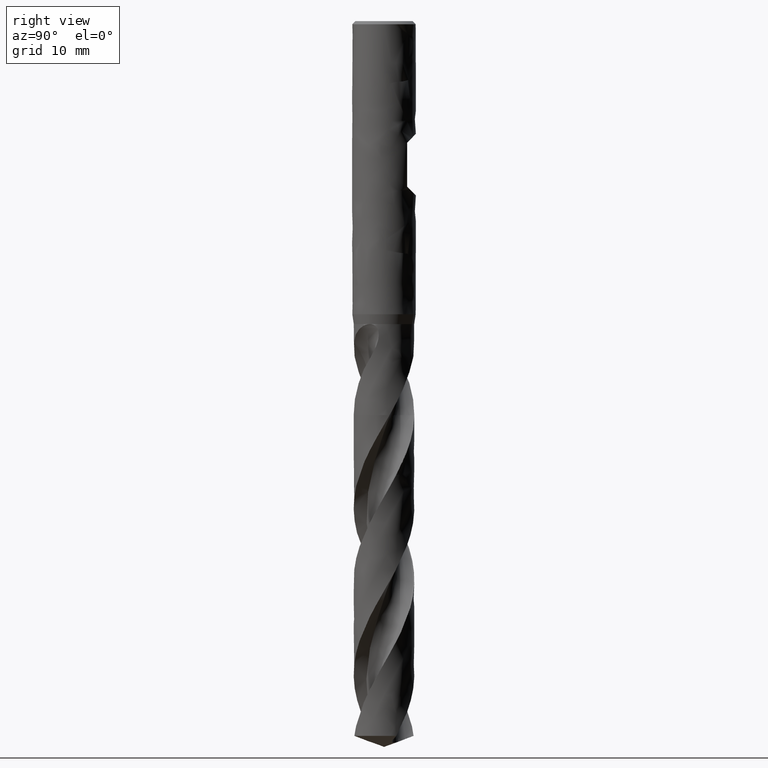
[diagram: clean part render]
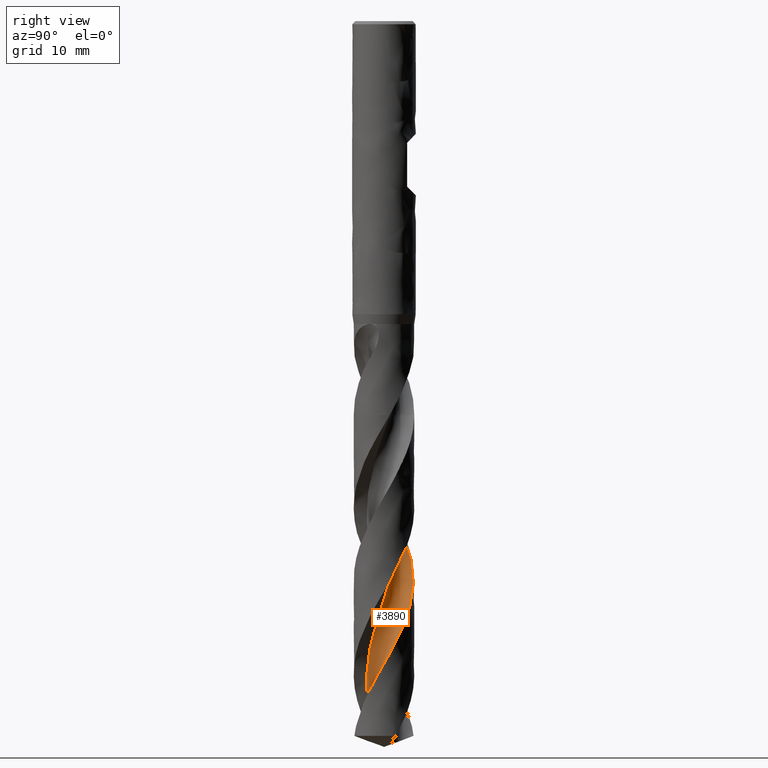
[diagram: same view with one face highlighted and labeled with its STEP entity id]
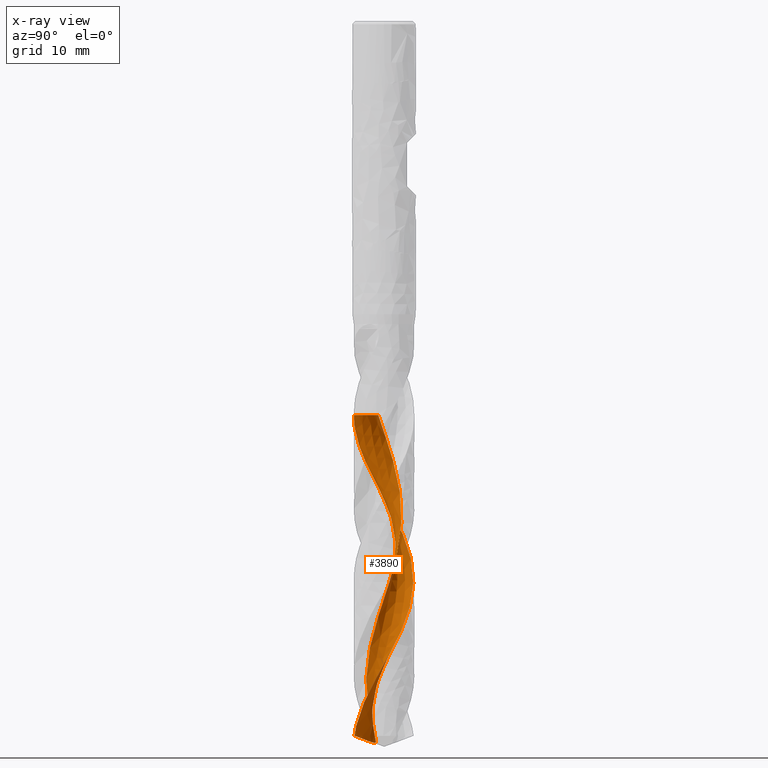
[diagram: x-ray of the same camera — body ghosted, the highlighted face saturated]
A machine part, right view. The second image highlights one B-rep face of the part: STEP entity #3890.
The next image is the same camera in x-ray: the body ghosted, the highlighted face saturated — about 0% of this face is hidden behind the body in this view.
In plain terms, the highlighted face is a freeform B-spline surface patch.
Its self-contained STEP definition (entity closure, byte-faithful):
#1922 = VERTEX_POINT('', #1923);
#1923 = CARTESIAN_POINT('', (-2.15756374204552, -0.721682214597213, -49.4));
#1929 = EDGE_CURVE('', #1922, #1930, #1932, .T.);
#1930 = VERTEX_POINT('', #1931);
#1931 = CARTESIAN_POINT('', (-0.0676140754657782, -3.79939841774969, -49.4));
#1932 = B_SPLINE_CURVE_WITH_KNOTS('', 3, (#1933, #1934, #1935, #1936, #1937, #1938, #1939, #1940, #1941, #1942, #1943, #1944, #1945, #1946, #1947, #1948, #1949, #1950, #1951, #1952, #1953, #1954, #1955, #1956, #1957, #1958, #1959, #1960, #1961, #1962, #1963, #1964, #1965, #1966, #1967, #1968, #1969, #1970, #1971, #1972, #1973, #1974, #1975, #1976, #1977, #1978, #1979, #1980, #1981, #1982, #1983, #1984, #1985, #1986, #1987, #1988, #1989, #1990, #1991, #1992, #1993, #1994, #1995, #1996, #1997, #1998, #1999, #2000, #2001, #2002, #2003, #2004, #2005), .UNSPECIFIED., .F., .U., (4, 3, 3, 3, 3, 3, 3, 3, 3, 3, 3, 3, 3, 3, 3, 3, 3, 3, 3, 3, 3, 3, 3, 3, 4), (0., 0.198102620045559, 0.396007886428974, 0.593720137415794, 0.791242859788339, 0.988578747577515, 1.18572974667057, 1.38269708688494, 1.57948130263157, 1.776082242892, 1.97249907087823, 2.16873025341172, 2.20763480684455, 2.40571772462006, 2.60360375688927, 2.80129715480241, 2.99880132450905, 3.19611888440971, 3.39325170846369, 3.59020095709346, 3.78696709676669, 3.98354990894398, 4.17994848872742, 4.31094176945902, 4.34968559215296), .UNSPECIFIED.);
#1933 = CARTESIAN_POINT('', (-2.15756374204551, -0.721682214597209, -49.4));
#1934 = CARTESIAN_POINT('', (-2.09154292649425, -0.723012013848227, -49.4));
#1935 = CARTESIAN_POINT('', (-2.02551778045493, -0.727216534727586, -49.4));
#1936 = CARTESIAN_POINT('', (-1.95986157918401, -0.734272006843179, -49.4));
#1937 = CARTESIAN_POINT('', (-1.89427078589083, -0.74132045016097, -49.4));
#1938 = CARTESIAN_POINT('', (-1.8289247798516, -0.751227419485921, -49.4));
#1939 = CARTESIAN_POINT('', (-1.76419226210935, -0.763937016835212, -49.4));
#1940 = CARTESIAN_POINT('', (-1.69952287746513, -0.776634218617585, -49.4));
#1941 = CARTESIAN_POINT('', (-1.63534433337415, -0.792152419475124, -49.4));
#1942 = CARTESIAN_POINT('', (-1.57201803872644, -0.810404231701749, -49.4));
#1943 = CARTESIAN_POINT('', (-1.50875244919343, -0.82863854758881, -49.4));
#1944 = CARTESIAN_POINT('', (-1.44621888813532, -0.849635404934512, -49.4));
#1945 = CARTESIAN_POINT('', (-1.38476882717498, -0.873276790316916, -49.4));
#1946 = CARTESIAN_POINT('', (-1.32337689115541, -0.896895813571384, -49.4));
#1947 = CARTESIAN_POINT('', (-1.26295154786131, -0.923198542533362, -49.4));
#1948 = CARTESIAN_POINT('', (-1.203831778333, -0.952037421128864, -49.4));
#1949 = CARTESIAN_POINT('', (-1.14476739952568, -0.98084927989173, -49.4));
#1950 = CARTESIAN_POINT('', (-1.08689585151214, -1.01224633073886, -49.4));
#1951 = CARTESIAN_POINT('', (-1.0305411815411, -1.04605276831694, -49.4));
#1952 = CARTESIAN_POINT('', (-0.974239009581947, -1.07982771301673, -49.4));
#1953 = CARTESIAN_POINT('', (-0.919345946236182, -1.11607050093009, -49.4));
#1954 = CARTESIAN_POINT('', (-0.866168789355752, -1.15457857077143, -49.4));
#1955 = CARTESIAN_POINT('', (-0.81304107233951, -1.1930508388916, -49.4));
#1956 = CARTESIAN_POINT('', (-0.761527227984293, -1.23385574466256, -49.4));
#1957 = CARTESIAN_POINT('', (-0.711914633296088, -1.27676565235266, -49.4));
#1958 = CARTESIAN_POINT('', (-0.662348245425737, -1.3196355957897, -49.4));
#1959 = CARTESIAN_POINT('', (-0.614587518963745, -1.36468622165974, -49.4));
#1960 = CARTESIAN_POINT('', (-0.568898398258911, -1.4116666761704, -49.4));
#1961 = CARTESIAN_POINT('', (-0.52325206436836, -1.45860313456227, -49.4));
#1962 = CARTESIAN_POINT('', (-0.479588846528021, -1.50755279763614, -49.4));
#1963 = CARTESIAN_POINT('', (-0.438151418552866, -1.55824361028324, -49.4));
#1964 = CARTESIAN_POINT('', (-0.396753155603212, -1.60888651196996, -49.4));
#1965 = CARTESIAN_POINT('', (-0.357499883090853, -1.66136095599146, -49.4));
#1966 = CARTESIAN_POINT('', (-0.320609353362314, -1.71537584729791, -49.4));
#1967 = CARTESIAN_POINT('', (-0.313295482210647, -1.72608477336087, -49.4));
#1968 = CARTESIAN_POINT('', (-0.306072712907801, -1.73685649068679, -49.4));
#1969 = CARTESIAN_POINT('', (-0.298942622463826, -1.74768864739292, -49.4));
#1970 = CARTESIAN_POINT('', (-0.262639696597205, -1.80284068017117, -49.4));
#1971 = CARTESIAN_POINT('', (-0.228702750625734, -1.85962454880578, -49.4));
#1972 = CARTESIAN_POINT('', (-0.197323610041707, -1.91771928765758, -49.4));
#1973 = CARTESIAN_POINT('', (-0.165975658911322, -1.9757562829533, -49.4));
#1974 = CARTESIAN_POINT('', (-0.137121445904292, -2.03521072515848, -49.4));
#1975 = CARTESIAN_POINT('', (-0.110923743226568, -2.09574722024564, -49.4));
#1976 = CARTESIAN_POINT('', (-0.0847515429934967, -2.15622478540926, -49.4));
#1977 = CARTESIAN_POINT('', (-0.0611815317664875, -2.2178958492849, -49.4));
#1978 = CARTESIAN_POINT('', (-0.040346414166903, -2.28041318950161, -49.4));
#1979 = CARTESIAN_POINT('', (-0.0195312395293862, -2.342870689358, -49.4));
#1980 = CARTESIAN_POINT('', (-0.0014067071202221, -2.40628989123899, -49.4));
#1981 = CARTESIAN_POINT('', (0.013925332729769, -2.47031441261588, -49.4));
#1982 = CARTESIAN_POINT('', (0.0292428862578459, -2.53427844107492, -49.4));
#1983 = CARTESIAN_POINT('', (0.0418018829467823, -2.59896628806522, -49.4));
#1984 = CARTESIAN_POINT('', (0.0515318809608229, -2.66401512757402, -49.4));
#1985 = CARTESIAN_POINT('', (0.0612527693982899, -2.72900306600311, -49.4));
#1986 = CARTESIAN_POINT('', (0.0681681126158622, -2.79447265206143, -49.4));
#1987 = CARTESIAN_POINT('', (0.0722391958141654, -2.86005736136833, -49.4));
#1988 = CARTESIAN_POINT('', (0.0763064879095472, -2.92558099641785, -49.4));
#1989 = CARTESIAN_POINT('', (0.0775424041594849, -2.99134164443471, -49.4));
#1990 = CARTESIAN_POINT('', (0.0759400382834207, -3.05697183595272, -49.4));
#1991 = CARTESIAN_POINT('', (0.0743391621695445, -3.12254100933551, -49.4));
#1992 = CARTESIAN_POINT('', (0.0699023112200169, -3.18810193155515, -49.4));
#1993 = CARTESIAN_POINT('', (0.0626542324722521, -3.25328892916127, -49.4));
#1994 = CARTESIAN_POINT('', (0.0554129067772708, -3.3184151918815, -49.4));
#1995 = CARTESIAN_POINT('', (0.0453521547785525, -3.38328914112005, -49.4));
#1996 = CARTESIAN_POINT('', (0.0325279870861843, -3.44754960810189, -49.4));
#1997 = CARTESIAN_POINT('', (0.0197158378764444, -3.5117498518143, -49.4));
#1998 = CARTESIAN_POINT('', (0.00412171715205848, -3.57545673621429, -49.4));
#1999 = CARTESIAN_POINT('', (-0.014167721312891, -3.63831625339938, -49.4));
#2000 = CARTESIAN_POINT('', (-0.0263663510071808, -3.68024208804828, -49.4));
#2001 = CARTESIAN_POINT('', (-0.0397753381924175, -3.72183451045986, -49.4));
#2002 = CARTESIAN_POINT('', (-0.054361510315047, -3.76299062495376, -49.4));
#2003 = CARTESIAN_POINT('', (-0.0586756557685096, -3.77516335010284, -49.4));
#2004 = CARTESIAN_POINT('', (-0.063093504912953, -3.7873001539091, -49.4));
#2005 = CARTESIAN_POINT('', (-0.0676140858633684, -3.79939841386458, -49.4));
#2356 = VERTEX_POINT('', #2357);
#2357 = CARTESIAN_POINT('', (-2.02311524381479, -1.04032510108872, -90.1719959867582));
#2385 = EDGE_CURVE('', #2356, #1922, #2386, .T.);
#2386 = (
   BOUNDED_CURVE ()
   B_SPLINE_CURVE (3, (#2387, #2388, #2389, #2390, #2391, #2392, #2393, #2394, #2395, #2396, #2397, #2398, #2399, #2400, #2401, #2402, #2403, #2404, #2405, #2406, #2407, #2408, #2409, #2410, #2411, #2412, #2413, #2414, #2415, #2416, #2417, #2418, #2419, #2420, #2421, #2422, #2423, #2424, #2425, #2426, #2427, #2428, #2429, #2430, #2431, #2432, #2433, #2434, #2435, #2436, #2437, #2438, #2439, #2440, #2441, #2442, #2443, #2444, #2445, #2446, #2447, #2448), .UNSPECIFIED., .F., .U.)
   B_SPLINE_CURVE_WITH_KNOTS ((4, 1, 1, 1, 1, 1, 1, 1, 1, 1, 1, 1, 1, 1, 1, 1, 1, 1, 1, 1, 1, 1, 1, 1, 1, 1, 1, 1, 1, 1, 1, 1, 1, 1, 1, 1, 1, 1, 1, 1, 1, 1, 1, 1, 1, 1, 1, 1, 1, 1, 1, 1, 1, 1, 1, 1, 1, 1, 1, 4), (0.8780040132418, 1.39657894736842, 2.09486842105263, 2.79315789473684, 3.49144736842105, 4.18973684210526, 4.88802631578947, 5.58631578947368, 6.2846052631579, 6.98289473684211, 7.68118421052632, 8.37947368421053, 9.07776315789474, 9.77605263157895, 10.4743421052632, 11.1726315789474, 11.8709210526316, 12.5692105263158, 13.2675, 13.9657894736842, 14.6640789473684, 15.3623684210526, 16.0606578947368, 16.7589473684211, 17.4572368421053, 18.1555263157895, 18.8538157894737, 19.5521052631579, 20.2503947368421, 20.9486842105263, 21.6469736842105, 22.3452631578947, 23.0435526315789, 23.7418421052632, 24.4401315789474, 25.1384210526316, 25.8367105263158, 26.535, 27.2332894736842, 27.9315789473684, 28.6298684210526, 29.3281578947368, 30.026447368421, 30.7247368421053, 31.4230263157895, 32.1213157894737, 32.8196052631579, 33.5178947368421, 34.2161842105263, 34.9144736842105, 35.6127631578947, 36.311052631579, 37.0093421052632, 37.7076315789474, 38.4059210526316, 39.1042105263158, 39.8025, 40.5007894736842, 41.1990789473684, 41.65), .UNSPECIFIED.)
   CURVE ()
   GEOMETRIC_REPRESENTATION_ITEM ()
   RATIONAL_B_SPLINE_CURVE ((1., 1., 1., 1., 1., 1., 1., 1., 1., 1., 1., 1., 1., 1., 1., 1., 1., 1., 1., 1., 1., 1., 1., 1., 1., 1., 1., 1., 1., 1., 1., 1., 1., 1., 1., 1., 1., 1., 1., 1., 1., 1., 1., 1., 1., 1., 1., 1., 1., 1., 1., 1., 1., 1., 1., 1., 1., 1., 1., 1., 1., 1.))
   REPRESENTATION_ITEM ('')
);
#2387 = CARTESIAN_POINT('', (-2.02311524381479, -1.04032510108872, -90.1719959867582));
#2388 = CARTESIAN_POINT('', (-1.99471621078621, -1.0922143210982, -89.9991376753827));
#2389 = CARTESIAN_POINT('', (-1.92343910012431, -1.21127759174741, -89.5935162061124));
#2390 = CARTESIAN_POINT('', (-1.79493975595417, -1.38740969955438, -88.9551315789474));
#2391 = CARTESIAN_POINT('', (-1.6355240650662, -1.56395491508903, -88.2568421052631));
#2392 = CARTESIAN_POINT('', (-1.45905451213034, -1.72257062646136, -87.5585526315789));
#2393 = CARTESIAN_POINT('', (-1.2675102775093, -1.86164362533669, -86.8602631578947));
#2394 = CARTESIAN_POINT('', (-1.06301844728363, -1.97977442037727, -86.1619736842105));
#2395 = CARTESIAN_POINT('', (-0.847832631308418, -2.07579151354426, -85.4636842105263));
#2396 = CARTESIAN_POINT('', (-0.624308569741215, -2.14876212527497, -84.7653947368421));
#2397 = CARTESIAN_POINT('', (-0.394879332066212, -2.19800074317598, -84.0671052631579));
#2398 = CARTESIAN_POINT('', (-0.162029729953338, -2.2230750315987, -83.3688157894737));
#2399 = CARTESIAN_POINT('', (0.0717296290486311, -2.22380916367454, -82.6705263157895));
#2400 = CARTESIAN_POINT('', (0.303888432530079, -2.20028452916705, -81.9722368421052));
#2401 = CARTESIAN_POINT('', (0.531962627331794, -2.15283783276772, -81.2739473684211));
#2402 = CARTESIAN_POINT('', (0.753520003328436, -2.0820566130537, -80.5756578947368));
#2403 = CARTESIAN_POINT('', (0.966205144505358, -1.988772239606, -79.8773684210526));
#2404 = CARTESIAN_POINT('', (1.16776350354662, -1.87405046910499, -79.1790789473684));
#2405 = CARTESIAN_POINT('', (1.35606436557773, -1.73917966449996, -78.4807894736842));
#2406 = CARTESIAN_POINT('', (1.52912247863547, -1.58565680328386, -77.7825));
#2407 = CARTESIAN_POINT('', (1.68511814227062, -1.41517142159955, -77.0842105263158));
#2408 = CARTESIAN_POINT('', (1.82241556141667, -1.22958766010516, -76.3859210526316));
#2409 = CARTESIAN_POINT('', (1.93957929009219, -1.03092459509237, -75.6876315789474));
#2410 = CARTESIAN_POINT('', (2.03538860848983, -0.821335054129882, -74.9893421052631));
#2411 = CARTESIAN_POINT('', (2.10884969735953, -0.603083129366593, -74.2910526315789));
#2412 = CARTESIAN_POINT('', (2.15920549513173, -0.378520613459784, -73.5927631578948));
#2413 = CARTESIAN_POINT('', (2.18594314574888, -0.150062592799476, -72.8944736842105));
#2414 = CARTESIAN_POINT('', (2.18879896847873, 0.0798375597986625, -72.1961842105263));
#2415 = CARTESIAN_POINT('', (2.16776090485889, 0.308713545519183, -71.4978947368421));
#2416 = CARTESIAN_POINT('', (2.12306842215746, 0.534111602739943, -70.7996052631579));
#2417 = CARTESIAN_POINT('', (2.05520987711246, 0.753615822022462, -70.1013157894737));
#2418 = CARTESIAN_POINT('', (1.9649173680174, 0.964873063632332, -69.4030263157895));
#2419 = CARTESIAN_POINT('', (1.85315912723784, 1.16561723232701, -68.7047368421053));
#2420 = CARTESIAN_POINT('', (1.72112952975993, 1.3536926704167, -68.0064473684211));
#2421 = CARTESIAN_POINT('', (1.57023681618217, 1.5270764385788, -67.3081578947368));
#2422 = CARTESIAN_POINT('', (1.40208865046082, 1.68389926451263, -66.6098684210526));
#2423 = CARTESIAN_POINT('', (1.21847565351729, 1.82246495216498, -65.9115789473684));
#2424 = CARTESIAN_POINT('', (1.02135307332399, 1.94126805882885, -65.2132894736842));
#2425 = CARTESIAN_POINT('', (0.812820770131901, 2.03900966379026, -64.515));
#2426 = CARTESIAN_POINT('', (0.595101711924351, 2.11461107023035, -63.8167105263158));
#2427 = CARTESIAN_POINT('', (0.370519189828218, 2.16722530162461, -63.1184210526316));
#2428 = CARTESIAN_POINT('', (0.141472975951284, 2.19624627475036, -62.4201315789474));
#2429 = CARTESIAN_POINT('', (-0.0895853431772159, 2.20131555343497, -61.7218421052632));
#2430 = CARTESIAN_POINT('', (-0.320177615809205, 2.18232661015978, -61.0235526315789));
#2431 = CARTESIAN_POINT('', (-0.547824708711059, 2.13942654637789, -60.3252631578947));
#2432 = CARTESIAN_POINT('', (-0.770072173241218, 2.0730152466974, -59.6269736842105));
#2433 = CARTESIAN_POINT('', (-0.984515739843191, 1.98374196671578, -58.9286842105263));
#2434 = CARTESIAN_POINT('', (-1.18882638765209, 1.87249937903503, -58.2303947368421));
#2435 = CARTESIAN_POINT('', (-1.38077473888331, 1.74041512665463, -57.5321052631579));
#2436 = CARTESIAN_POINT('', (-1.55825453310323, 1.58884095718701, -56.8338157894737));
#2437 = CARTESIAN_POINT('', (-1.71930494386556, 1.41933953538759, -56.1355263157895));
#2438 = CARTESIAN_POINT('', (-1.86213151125826, 1.23366905347921, -55.4372368421053));
#2439 = CARTESIAN_POINT('', (-1.98512547193924, 1.03376578458149, -54.7389473684211));
#2440 = CARTESIAN_POINT('', (-2.08688129791131, 0.821724731195265, -54.0406578947368));
#2441 = CARTESIAN_POINT('', (-2.16621221408079, 0.599778593122337, -53.3423684210526));
#2442 = CARTESIAN_POINT('', (-2.22216369729542, 0.370275099331923, -52.6440789473684));
#2443 = CARTESIAN_POINT('', (-2.25402417885652, 0.135653502351454, -51.9457894736842));
#2444 = CARTESIAN_POINT('', (-2.26133518166227, -0.101581706157768, -51.2475));
#2445 = CARTESIAN_POINT('', (-2.24389199552161, -0.338881509431187, -50.5492105263158));
#2446 = CARTESIAN_POINT('', (-2.20674180473275, -0.545969723807717, -49.9333771929825));
#2447 = CARTESIAN_POINT('', (-2.17261592313684, -0.672494923143245, -49.5503070175439));
#2448 = CARTESIAN_POINT('', (-2.15756374204552, -0.721682214597213, -49.4));
#3800 = EDGE_CURVE('', #1930, #3801, #3803, .T.);
#3801 = VERTEX_POINT('', #3802);
#3802 = CARTESIAN_POINT('', (-1.06507046638348, -3.64768761020426, -51.1552967752265));
#3803 = B_SPLINE_CURVE_WITH_KNOTS('', 3, (#3804, #3805, #3806, #3807, #3808, #3809, #3810, #3811, #3812, #3813, #3814, #3815, #3816), .UNSPECIFIED., .F., .U., (4, 3, 3, 3, 4), (4.55830618743403, 5.13932333772439, 5.8055947334997, 6.47168228002275, 6.58423856752266), .UNSPECIFIED.);
#3804 = CARTESIAN_POINT('', (-0.0676140754657782, -3.79939841774969, -49.4));
#3805 = CARTESIAN_POINT('', (-0.164345614377959, -3.79767698376126, -49.5677767509168));
#3806 = CARTESIAN_POINT('', (-0.261023111435579, -3.7922584808004, -49.7356052886636));
#3807 = CARTESIAN_POINT('', (-0.357328396996649, -3.78316222447568, -49.9033895018584));
#3808 = CARTESIAN_POINT('', (-0.467764822150792, -3.77273124942654, -50.0957931544157));
#3809 = CARTESIAN_POINT('', (-0.577769190033757, -3.75745736315102, -50.2882434575383));
#3810 = CARTESIAN_POINT('', (-0.686861404200794, -3.73740838167563, -50.4806521421361));
#3811 = CARTESIAN_POINT('', (-0.795923515736786, -3.71736493246575, -50.6730077339656));
#3812 = CARTESIAN_POINT('', (-0.904125863342508, -3.69253967628577, -50.8654136563601));
#3813 = CARTESIAN_POINT('', (-1.01100287909596, -3.66304152016577, -51.0577782061767));
#3814 = CARTESIAN_POINT('', (-1.02906308781038, -3.65805688570099, -51.0902842028539));
#3815 = CARTESIAN_POINT('', (-1.04708634893962, -3.65293870470584, -51.1227905440421));
#3816 = CARTESIAN_POINT('', (-1.06507046638357, -3.64768761020423, -51.1552967752267));
#3890 = ADVANCED_FACE('', (#3891), #4095, .T.);
#3891 = FACE_OUTER_BOUND('', #3892, .T.);
#3892 = EDGE_LOOP('', (#3893, #3894, #3895, #4021, #4033, #4094));
#3893 = ORIENTED_EDGE('', *, *, #1929, .F.);
#3894 = ORIENTED_EDGE('', *, *, #2385, .F.);
#3895 = ORIENTED_EDGE('', *, *, #3896, .T.);
#3896 = EDGE_CURVE('', #2356, #3897, #3899, .T.);
#3897 = VERTEX_POINT('', #3898);
#3898 = CARTESIAN_POINT('', (0.818390835246708, -3.71082692142656, -89.6169131097884));
#3899 = B_SPLINE_CURVE_WITH_KNOTS('', 3, (#3900, #3901, #3902, #3903, #3904, #3905, #3906, #3907, #3908, #3909, #3910, #3911, #3912, #3913, #3914, #3915, #3916, #3917, #3918, #3919, #3920, #3921, #3922, #3923, #3924, #3925, #3926, #3927, #3928, #3929, #3930, #3931, #3932, #3933, #3934, #3935, #3936, #3937, #3938, #3939, #3940, #3941, #3942, #3943, #3944, #3945, #3946, #3947, #3948, #3949, #3950, #3951, #3952, #3953, #3954, #3955, #3956, #3957, #3958, #3959, #3960, #3961, #3962, #3963, #3964, #3965, #3966, #3967, #3968, #3969, #3970, #3971, #3972, #3973, #3974, #3975, #3976, #3977, #3978, #3979, #3980, #3981, #3982, #3983, #3984, #3985, #3986, #3987, #3988, #3989, #3990, #3991, #3992, #3993, #3994, #3995, #3996, #3997, #3998, #3999, #4000, #4001, #4002, #4003, #4004, #4005, #4006, #4007, #4008, #4009, #4010, #4011, #4012, #4013, #4014, #4015, #4016, #4017, #4018, #4019, #4020), .UNSPECIFIED., .F., .U., (4, 3, 3, 3, 3, 3, 3, 3, 3, 3, 3, 3, 3, 3, 3, 3, 3, 3, 3, 3, 3, 3, 3, 3, 3, 3, 3, 3, 3, 3, 3, 3, 3, 3, 3, 3, 3, 3, 3, 3, 4), (0., 0.131517962613533, 0.262937174952703, 0.394225559113601, 0.525349879300322, 0.656282108334531, 0.78700958443703, 0.874224508037479, 0.961397239736655, 1.04854418897691, 1.13568636268764, 1.22284714221885, 1.31004902918924, 1.39731010811867, 1.48464125026871, 1.57204489719062, 1.65951566348529, 1.74704232952694, 1.83461042318973, 1.92220463151386, 2.00981058825055, 2.14121188881835, 2.19960415724759, 2.22556096010352, 2.3134674095168, 2.35245192260365, 2.39147094472154, 2.52388148490759, 2.65604497507673, 2.78799925948393, 2.91977647714327, 3.05140315950992, 3.18290083549934, 3.31428678284954, 3.44557475802042, 3.64223751911414, 3.83864471201178, 4.03482555571905, 4.23079922840242, 4.42657724175519, 4.53419017306843), .UNSPECIFIED.);
#3900 = CARTESIAN_POINT('', (-2.02311524381479, -1.04032510108873, -90.1719959867582));
#3901 = CARTESIAN_POINT('', (-1.9830324178536, -1.03028635173918, -90.1866410073764));
#3902 = CARTESIAN_POINT('', (-1.94250270116444, -1.02172838216619, -90.2011640549521));
#3903 = CARTESIAN_POINT('', (-1.90166387930184, -1.01471762307281, -90.2154792895033));
#3904 = CARTESIAN_POINT('', (-1.8608557212724, -1.00771212800855, -90.2297837754593));
#3905 = CARTESIAN_POINT('', (-1.81968533655673, -1.00224255945993, -90.2438996891887));
#3906 = CARTESIAN_POINT('', (-1.77829939339597, -0.998363579870117, -90.2577256888759));
#3907 = CARTESIAN_POINT('', (-1.7369546500526, -0.994488461814883, -90.2715379247435));
#3908 = CARTESIAN_POINT('', (-1.69533768873544, -0.992195716524516, -90.285079999776));
#3909 = CARTESIAN_POINT('', (-1.65360364808813, -0.991524990120592, -90.2982330290495));
#3910 = CARTESIAN_POINT('', (-1.61192176020826, -0.990855101887083, -90.3113696216956));
#3911 = CARTESIAN_POINT('', (-1.57006251434316, -0.991802590966922, -90.3241372194914));
#3912 = CARTESIAN_POINT('', (-1.52818914795758, -0.994387847753297, -90.3363983870016));
#3913 = CARTESIAN_POINT('', (-1.48637712414519, -0.996969317256315, -90.3486415924602));
#3914 = CARTESIAN_POINT('', (-1.44448705444689, -1.00118818710341, -90.3603983379365));
#3915 = CARTESIAN_POINT('', (-1.40268991092034, -1.00704009772969, -90.3715140626105));
#3916 = CARTESIAN_POINT('', (-1.36095813012179, -1.01288285708843, -90.3826124044199));
#3917 = CARTESIAN_POINT('', (-1.31925186515339, -1.02036350072165, -90.3930889581368));
#3918 = CARTESIAN_POINT('', (-1.27774909260352, -1.02944624052083, -90.4027779345984));
#3919 = CARTESIAN_POINT('', (-1.25006048998485, -1.0355057964863, -90.4092419417609));
#3920 = CARTESIAN_POINT('', (-1.22243669126031, -1.0422831148436, -90.4153613070182));
#3921 = CARTESIAN_POINT('', (-1.19493203861405, -1.04975816509921, -90.4210865169319));
#3922 = CARTESIAN_POINT('', (-1.16744069187396, -1.0572295991551, -90.4268089571648));
#3923 = CARTESIAN_POINT('', (-1.14004715865654, -1.06540391149986, -90.4321418529766));
#3924 = CARTESIAN_POINT('', (-1.1128062645626, -1.07425269899893, -90.4370383255247));
#3925 = CARTESIAN_POINT('', (-1.08557342731419, -1.08309886935505, -90.441933349878));
#3926 = CARTESIAN_POINT('', (-1.05847174282522, -1.0926260898152, -90.4463958453481));
#3927 = CARTESIAN_POINT('', (-1.031555583346, -1.1027973043834, -90.450384600929));
#3928 = CARTESIAN_POINT('', (-1.00464089883424, -1.11296796158343, -90.4543731379317));
#3929 = CARTESIAN_POINT('', (-0.977890438859659, -1.12379056084153, -90.4578909397965));
#3930 = CARTESIAN_POINT('', (-0.951356793487437, -1.13521982006966, -90.4609056760084));
#3931 = CARTESIAN_POINT('', (-0.924817482887672, -1.1466515195714, -90.4639210558999));
#3932 = CARTESIAN_POINT('', (-0.898474283086014, -1.15869901687423, -90.4664353673871));
#3933 = CARTESIAN_POINT('', (-0.872376373868087, -1.17131011740838, -90.4684279923566));
#3934 = CARTESIAN_POINT('', (-0.846266156152904, -1.18392716568704, -90.4704215571033));
#3935 = CARTESIAN_POINT('', (-0.820381558794872, -1.19711783159599, -90.4718943998043));
#3936 = CARTESIAN_POINT('', (-0.794766664528418, -1.21082519326012, -90.4728394419867));
#3937 = CARTESIAN_POINT('', (-0.769134383072017, -1.22454185937418, -90.4737851256563));
#3938 = CARTESIAN_POINT('', (-0.743753568786086, -1.23878570248386, -90.4742030234676));
#3939 = CARTESIAN_POINT('', (-0.718661799507118, -1.25349786041413, -90.4740999553671));
#3940 = CARTESIAN_POINT('', (-0.693549883672689, -1.26822183095524, -90.4739968045116));
#3941 = CARTESIAN_POINT('', (-0.668710514938113, -1.28342462215398, -90.4733719272458));
#3942 = CARTESIAN_POINT('', (-0.644173950531756, -1.2990483516649, -90.4722448297468));
#3943 = CARTESIAN_POINT('', (-0.619617015179122, -1.31468505243574, -90.4711167964998));
#3944 = CARTESIAN_POINT('', (-0.595348291524505, -1.33075281982948, -90.4694852310408));
#3945 = CARTESIAN_POINT('', (-0.571390652643632, -1.34719729810857, -90.4673798528565));
#3946 = CARTESIAN_POINT('', (-0.547414616112878, -1.36365440449995, -90.4652728579015));
#3947 = CARTESIAN_POINT('', (-0.523737000322345, -1.38049766714097, -90.4626904098262));
#3948 = CARTESIAN_POINT('', (-0.500373933139676, -1.39767806480172, -90.4596692950852));
#3949 = CARTESIAN_POINT('', (-0.476995935373916, -1.41486944190079, -90.4566462496472));
#3950 = CARTESIAN_POINT('', (-0.453921651689718, -1.43240653330054, -90.4531827537593));
#3951 = CARTESIAN_POINT('', (-0.431161591546325, -1.45024659317708, -90.4493194707398));
#3952 = CARTESIAN_POINT('', (-0.408390758741396, -1.46809509700876, -90.4454543591732));
#3953 = CARTESIAN_POINT('', (-0.385924961352874, -1.48625421633105, -90.4411876637129));
#3954 = CARTESIAN_POINT('', (-0.363770430177826, -1.50468764425519, -90.4365611654193));
#3955 = CARTESIAN_POINT('', (-0.341609292052065, -1.5231265694182, -90.4319332874058));
#3956 = CARTESIAN_POINT('', (-0.319751652660257, -1.54184654320301, -90.4269438741319));
#3957 = CARTESIAN_POINT('', (-0.298200778862542, -1.56081729784113, -90.4216337360811));
#3958 = CARTESIAN_POINT('', (-0.276647014593401, -1.57979059689693, -90.4163228858178));
#3959 = CARTESIAN_POINT('', (-0.255393435070113, -1.59902059416649, -90.4106896783765));
#3960 = CARTESIAN_POINT('', (-0.234441481111282, -1.61848233614164, -90.4047725687486));
#3961 = CARTESIAN_POINT('', (-0.203015376058837, -1.64767325308508, -90.395897419961));
#3962 = CARTESIAN_POINT('', (-0.172252634518306, -1.6773990377501, -90.3863800463317));
#3963 = CARTESIAN_POINT('', (-0.14215463080959, -1.70759375451234, -90.3763367784788));
#3964 = CARTESIAN_POINT('', (-0.128779643620352, -1.72101171916494, -90.3718737389971));
#3965 = CARTESIAN_POINT('', (-0.115533685992091, -1.73452471232666, -90.3673059156952));
#3966 = CARTESIAN_POINT('', (-0.102416831998977, -1.74812804263972, -90.3626424057657));
#3967 = CARTESIAN_POINT('', (-0.096586067030462, -1.75417505832551, -90.3605693606329));
#3968 = CARTESIAN_POINT('', (-0.0907806421736518, -1.76024010861656, -90.3584773387015));
#3969 = CARTESIAN_POINT('', (-0.0850005664579351, -1.76632281648639, -90.3563670959109));
#3970 = CARTESIAN_POINT('', (-0.0654255079914241, -1.78692278230743, -90.349220454926));
#3971 = CARTESIAN_POINT('', (-0.0461387366444322, -1.8077276835974, -90.3418641767678));
#3972 = CARTESIAN_POINT('', (-0.0271408552191234, -1.82872444195968, -90.3343254353087));
#3973 = CARTESIAN_POINT('', (-0.0187157264374394, -1.83803602724857, -90.3309821747512));
#3974 = CARTESIAN_POINT('', (-0.010346924590096, -1.84738591538537, -90.3276027927338));
#3975 = CARTESIAN_POINT('', (-0.0020345356091239, -1.85677309438473, -90.3241894561553));
#3976 = CARTESIAN_POINT('', (0.00628521148579057, -1.86616858290051, -90.3207730980964));
#3977 = CARTESIAN_POINT('', (0.0145487286106654, -1.8756017480487, -90.3173226089617));
#3978 = CARTESIAN_POINT('', (0.0227559052687261, -1.8850716417152, -90.3138400432684));
#3979 = CARTESIAN_POINT('', (0.0506068516971876, -1.91720760176303, -90.3020220022296));
#3980 = CARTESIAN_POINT('', (0.0778158301356846, -1.94977379042003, -90.2898327401035));
#3981 = CARTESIAN_POINT('', (0.104376192675446, -1.98273772165363, -90.2773432397718));
#3982 = CARTESIAN_POINT('', (0.130886999205503, -2.01564014917492, -90.2648770422019));
#3983 = CARTESIAN_POINT('', (0.156760748082108, -2.04895032083075, -90.2521072695966));
#3984 = CARTESIAN_POINT('', (0.181986995679705, -2.08264073735456, -90.2390922418164));
#3985 = CARTESIAN_POINT('', (0.207173311853406, -2.11627782425421, -90.2260978159348));
#3986 = CARTESIAN_POINT('', (0.231722278071471, -2.15030489494649, -90.2128545794942));
#3987 = CARTESIAN_POINT('', (0.255619703749408, -2.18469728669687, -90.1994107825177));
#3988 = CARTESIAN_POINT('', (0.279485061961964, -2.21904352800215, -90.1859850254966));
#3989 = CARTESIAN_POINT('', (0.302707996962251, -2.25376481863839, -90.1723549677677));
#3990 = CARTESIAN_POINT('', (0.325270797443716, -2.28883783496949, -90.1585609790089));
#3991 = CARTESIAN_POINT('', (0.347807823380576, -2.32387078575, -90.1447827477701));
#3992 = CARTESIAN_POINT('', (0.369693055752789, -2.35926536879118, -90.1308366706287));
#3993 = CARTESIAN_POINT('', (0.390905539477705, -2.39499852874042, -90.1167570169114));
#3994 = CARTESIAN_POINT('', (0.41209723299787, -2.43069666687319, -90.1026911625627));
#3995 = CARTESIAN_POINT('', (0.432623919016394, -2.46674361551157, -90.0884876374312));
#3996 = CARTESIAN_POINT('', (0.452461669222255, -2.50311578669094, -90.0741760327195));
#3997 = CARTESIAN_POINT('', (0.472282564036422, -2.53945705380178, -90.059876588041));
#3998 = CARTESIAN_POINT('', (0.491421783395527, -2.57613422835817, -90.0454647765717));
#3999 = CARTESIAN_POINT('', (0.509852669736787, -2.61312255357163, -90.0309666418246));
#4000 = CARTESIAN_POINT('', (0.528269812491781, -2.65008329724458, -90.0164793180803));
#4001 = CARTESIAN_POINT('', (0.545985478866791, -2.68736643821675, -90.0019011714826));
#4002 = CARTESIAN_POINT('', (0.562970497996873, -2.72494550946013, -89.9872555988061));
#4003 = CARTESIAN_POINT('', (0.588413199470514, -2.78123706167914, -89.9653172700551));
#4004 = CARTESIAN_POINT('', (0.612232252083148, -2.83822815821525, -89.943214333672));
#4005 = CARTESIAN_POINT('', (0.634319707110444, -2.89582003058887, -89.9210179207905));
#4006 = CARTESIAN_POINT('', (0.656378458935334, -2.95333706087825, -89.8988503527048));
#4007 = CARTESIAN_POINT('', (0.676727239246247, -3.01149860724346, -89.8765719487534));
#4008 = CARTESIAN_POINT('', (0.695247979391139, -3.07019131441559, -89.8542482687363));
#4009 = CARTESIAN_POINT('', (0.713747375335369, -3.12881638126075, -89.8319503156125));
#4010 = CARTESIAN_POINT('', (0.730438395600745, -3.18802120690339, -89.8095881559976));
#4011 = CARTESIAN_POINT('', (0.745194459619648, -3.24767416385883, -89.7872250585477));
#4012 = CARTESIAN_POINT('', (0.759934940930098, -3.30726412605933, -89.7648855769907));
#4013 = CARTESIAN_POINT('', (0.772757893950484, -3.36735648034075, -89.7425244199322));
#4014 = CARTESIAN_POINT('', (0.783530287163733, -3.42779739311923, -89.7202051585752));
#4015 = CARTESIAN_POINT('', (0.794291925262706, -3.48817796193225, -89.6979081806795));
#4016 = CARTESIAN_POINT('', (0.803017672170897, -3.54896786635586, -89.6756303013039));
#4017 = CARTESIAN_POINT('', (0.809570888194748, -3.60998685607652, -89.6534375227204));
#4018 = CARTESIAN_POINT('', (0.813172982085571, -3.64352704905918, -89.6412388599776));
#4019 = CARTESIAN_POINT('', (0.816120552616702, -3.6771517011922, -89.6290602229176));
#4020 = CARTESIAN_POINT('', (0.818390835246628, -3.71082692142658, -89.6169131097884));
#4021 = ORIENTED_EDGE('', *, *, #4022, .F.);
#4022 = EDGE_CURVE('', #4023, #3897, #4025, .T.);
#4023 = VERTEX_POINT('', #4024);
#4024 = CARTESIAN_POINT('', (1.45695128505315, -3.50960011297326, -88.433287096672));
#4025 = B_SPLINE_CURVE_WITH_KNOTS('', 3, (#4026, #4027, #4028, #4029, #4030, #4031, #4032), .UNSPECIFIED., .F., .U., (4, 3, 4), (0., 0.664272788119889, 1.36018940492356), .UNSPECIFIED.);
#4026 = CARTESIAN_POINT('', (1.45695128505302, -3.50960011297332, -88.4332870966722));
#4027 = CARTESIAN_POINT('', (1.35615368713917, -3.55144453543842, -88.6259463624201));
#4028 = CARTESIAN_POINT('', (1.25353672502603, -3.58894882740191, -88.8186536722514));
#4029 = CARTESIAN_POINT('', (1.14952566308425, -3.62195951798336, -89.0113209954182));
#4030 = CARTESIAN_POINT('', (1.04055984718572, -3.65654273216684, -89.213166372957));
#4031 = CARTESIAN_POINT('', (0.930016094089074, -3.68620893445144, -89.4150595478254));
#4032 = CARTESIAN_POINT('', (0.818390835246634, -3.71082692142658, -89.6169131097884));
#4033 = ORIENTED_EDGE('', *, *, #4034, .T.);
#4034 = EDGE_CURVE('', #4023, #3801, #4035, .T.);
#4035 = (
   BOUNDED_CURVE ()
   B_SPLINE_CURVE (3, (#4036, #4037, #4038, #4039, #4040, #4041, #4042, #4043, #4044, #4045, #4046, #4047, #4048, #4049, #4050, #4051, #4052, #4053, #4054, #4055, #4056, #4057, #4058, #4059, #4060, #4061, #4062, #4063, #4064, #4065, #4066, #4067, #4068, #4069, #4070, #4071, #4072, #4073, #4074, #4075, #4076, #4077, #4078, #4079, #4080, #4081, #4082, #4083, #4084, #4085, #4086, #4087, #4088, #4089, #4090, #4091, #4092, #4093), .UNSPECIFIED., .F., .U.)
   B_SPLINE_CURVE_WITH_KNOTS ((4, 1, 1, 1, 1, 1, 1, 1, 1, 1, 1, 1, 1, 1, 1, 1, 1, 1, 1, 1, 1, 1, 1, 1, 1, 1, 1, 1, 1, 1, 1, 1, 1, 1, 1, 1, 1, 1, 1, 1, 1, 1, 1, 1, 1, 1, 1, 1, 1, 1, 1, 1, 1, 1, 1, 4), (2.61671290332821, 2.79315789473684, 3.49144736842105, 4.18973684210526, 4.88802631578947, 5.58631578947368, 6.2846052631579, 6.98289473684211, 7.68118421052632, 8.37947368421053, 9.07776315789474, 9.77605263157895, 10.4743421052632, 11.1726315789474, 11.8709210526316, 12.5692105263158, 13.2675, 13.9657894736842, 14.6640789473684, 15.3623684210526, 16.0606578947368, 16.7589473684211, 17.4572368421053, 18.1555263157895, 18.8538157894737, 19.5521052631579, 20.2503947368421, 20.9486842105263, 21.6469736842105, 22.3452631578947, 23.0435526315789, 23.7418421052632, 24.4401315789474, 25.1384210526316, 25.8367105263158, 26.535, 27.2332894736842, 27.9315789473684, 28.6298684210526, 29.3281578947368, 30.026447368421, 30.7247368421053, 31.4230263157895, 32.1213157894737, 32.8196052631579, 33.5178947368421, 34.2161842105263, 34.9144736842105, 35.6127631578947, 36.311052631579, 37.0093421052632, 37.7076315789474, 38.4059210526316, 39.1042105263158, 39.8025, 39.8947032247734), .UNSPECIFIED.)
   CURVE ()
   GEOMETRIC_REPRESENTATION_ITEM ()
   RATIONAL_B_SPLINE_CURVE ((1., 1., 1., 1., 1., 1., 1., 1., 1., 1., 1., 1., 1., 1., 1., 1., 1., 1., 1., 1., 1., 1., 1., 1., 1., 1., 1., 1., 1., 1., 1., 1., 1., 1., 1., 1., 1., 1., 1., 1., 1., 1., 1., 1., 1., 1., 1., 1., 1., 1., 1., 1., 1., 1., 1., 1., 1., 1.))
   REPRESENTATION_ITEM ('')
);
#4036 = CARTESIAN_POINT('', (1.45695128505323, -3.50960011297322, -88.4332870966718));
#4037 = CARTESIAN_POINT('', (1.48768506781565, -3.49597775206325, -88.3744720995356));
#4038 = CARTESIAN_POINT('', (1.63911211903336, -3.42646062725465, -88.0828939445046));
#4039 = CARTESIAN_POINT('', (1.90260406685093, -3.28398229295693, -87.5585526315789));
#4040 = CARTESIAN_POINT('', (2.23108745127282, -3.05932111953821, -86.8602631578947));
#4041 = CARTESIAN_POINT('', (2.53373150756202, -2.80232049630886, -86.1619736842105));
#4042 = CARTESIAN_POINT('', (2.8074073514942, -2.51588640635494, -85.4636842105263));
#4043 = CARTESIAN_POINT('', (3.0493063374258, -2.2032214912701, -84.7653947368421));
#4044 = CARTESIAN_POINT('', (3.25696761417011, -1.86779061529268, -84.0671052631579));
#4045 = CARTESIAN_POINT('', (3.4283019466637, -1.51328369274174, -83.3688157894737));
#4046 = CARTESIAN_POINT('', (3.56161165953304, -1.1435764896502, -82.6705263157895));
#4047 = CARTESIAN_POINT('', (3.65560650747554, -0.762689712783896, -81.9722368421052));
#4048 = CARTESIAN_POINT('', (3.70941534206477, -0.374746824380601, -81.2739473684211));
#4049 = CARTESIAN_POINT('', (3.7225934795637, 0.0160689990547552, -80.5756578947368));
#4050 = CARTESIAN_POINT('', (3.6951257181128, 0.405558331790556, -79.8773684210526));
#4051 = CARTESIAN_POINT('', (3.62742499444081, 0.789548956066086, -79.1790789473684));
#4052 = CARTESIAN_POINT('', (3.52032671243465, 1.16393888153117, -78.4807894736842));
#4053 = CARTESIAN_POINT('', (3.37507881737805, 1.52473850350076, -77.7825));
#4054 = CARTESIAN_POINT('', (3.19332773025646, 1.86811148680094, -77.0842105263158));
#4055 = CARTESIAN_POINT('', (2.97710029581916, 2.19041397602991, -76.3859210526316));
#4056 = CARTESIAN_POINT('', (2.72878193575849, 2.48823175073247, -75.6876315789474));
#4057 = CARTESIAN_POINT('', (2.45109123408191, 2.75841496512616, -74.9893421052631));
#4058 = CARTESIAN_POINT('', (2.14705121520782, 2.99811013641034, -74.2910526315789));
#4059 = CARTESIAN_POINT('', (1.81995760622436, 3.20478907310264, -73.5927631578948));
#4060 = CARTESIAN_POINT('', (1.47334440285036, 3.37627446502222, -72.8944736842105));
#4061 = CARTESIAN_POINT('', (1.11094708368922, 3.51076188919844, -72.1961842105263));
#4062 = CARTESIAN_POINT('', (0.736663839161441, 3.60683802082528, -71.4978947368421));
#4063 = CARTESIAN_POINT('', (0.35451519985506, 3.66349487509344, -70.7996052631579));
#4064 = CARTESIAN_POINT('', (-0.0313975362062536, 3.68013994398097, -70.1013157894737));
#4065 = CARTESIAN_POINT('', (-0.416934666834069, 3.65660213152897, -69.4030263157895));
#4066 = CARTESIAN_POINT('', (-0.797960821704907, 3.59313343141988, -68.7047368421053));
#4067 = CARTESIAN_POINT('', (-1.17038764999936, 3.4904063314551, -68.0064473684211));
#4068 = CARTESIAN_POINT('', (-1.53021603902531, 3.34950697043427, -67.3081578947368));
#4069 = CARTESIAN_POINT('', (-1.87357744761275, 3.17192411361049, -66.6098684210526));
#4070 = CARTESIAN_POINT('', (-2.19677394633043, 2.95953405297185, -65.9115789473684));
#4071 = CARTESIAN_POINT('', (-2.49631656861831, 2.71458157772688, -65.2132894736842));
#4072 = CARTESIAN_POINT('', (-2.76896159265135, 2.43965719820071, -64.515));
#4073 = CARTESIAN_POINT('', (-3.01174439301809, 2.13767084254336, -63.8167105263158));
#4074 = CARTESIAN_POINT('', (-3.2220105239479, 1.81182227988567, -63.1184210526316));
#4075 = CARTESIAN_POINT('', (-3.39744372166341, 1.46556855554391, -62.4201315789474));
#4076 = CARTESIAN_POINT('', (-3.53609054224812, 1.10258875327802, -61.7218421052632));
#4077 = CARTESIAN_POINT('', (-3.63638138296074, 0.726746426180682, -61.0235526315789));
#4078 = CARTESIAN_POINT('', (-3.69714766892565, 0.342050061264636, -60.3252631578947));
#4079 = CARTESIAN_POINT('', (-3.7176350232924, -0.0473880370000857, -59.6269736842105));
#4080 = CARTESIAN_POINT('', (-3.69751227697438, -0.437394042262745, -58.9286842105263));
#4081 = CARTESIAN_POINT('', (-3.63687621361155, -0.823775666050417, -58.2303947368421));
#4082 = CARTESIAN_POINT('', (-3.53625198613688, -1.20236555753527, -57.5321052631579));
#4083 = CARTESIAN_POINT('', (-3.39658918279001, -1.56906461402945, -56.8338157894737));
#4084 = CARTESIAN_POINT('', (-3.21925356267035, -1.91988477102305, -56.1355263157895));
#4085 = CARTESIAN_POINT('', (-3.00601452198984, -2.25099084566455, -55.4372368421053));
#4086 = CARTESIAN_POINT('', (-2.75902839762539, -2.55874100570037, -54.7389473684211));
#4087 = CARTESIAN_POINT('', (-2.48081774185829, -2.83972547911794, -54.0406578947368));
#4088 = CARTESIAN_POINT('', (-2.17424679357536, -3.09080301354736, -53.3423684210526));
#4089 = CARTESIAN_POINT('', (-1.84249321793268, -3.30913506452731, -52.6440789473684));
#4090 = CARTESIAN_POINT('', (-1.48901693909083, -3.49221602933613, -51.9457894736842));
#4091 = CARTESIAN_POINT('', (-1.22500432530794, -3.59575374287839, -51.4495287496369));
#4092 = CARTESIAN_POINT('', (-1.08181186076326, -3.64236514209352, -51.1860311834844));
#4093 = CARTESIAN_POINT('', (-1.06507046638353, -3.64768761020424, -51.1552967752266));
#4094 = ORIENTED_EDGE('', *, *, #3800, .F.);
#4095 = (
   BOUNDED_SURFACE ()
   B_SPLINE_SURFACE (3, 2, ((#4096, #4097, #4098, #4099, #4100), (#4101, #4102, #4103, #4104, #4105), (#4106, #4107, #4108, #4109, #4110), (#4111, #4112, #4113, #4114, #4115), (#4116, #4117, #4118, #4119, #4120), (#4121, #4122, #4123, #4124, #4125), (#4126, #4127, #4128, #4129, #4130), (#4131, #4132, #4133, #4134, #4135), (#4136, #4137, #4138, #4139, #4140), (#4141, #4142, #4143, #4144, #4145), (#4146, #4147, #4148, #4149, #4150), (#4151, #4152, #4153, #4154, #4155), (#4156, #4157, #4158, #4159, #4160), (#4161, #4162, #4163, #4164, #4165), (#4166, #4167, #4168, #4169, #4170), (#4171, #4172, #4173, #4174, #4175), (#4176, #4177, #4178, #4179, #4180), (#4181, #4182, #4183, #4184, #4185), (#4186, #4187, #4188, #4189, #4190), (#4191, #4192, #4193, #4194, #4195), (#4196, #4197, #4198, #4199, #4200), (#4201, #4202, #4203, #4204, #4205), (#4206, #4207, #4208, #4209, #4210), (#4211, #4212, #4213, #4214, #4215), (#4216, #4217, #4218, #4219, #4220), (#4221, #4222, #4223, #4224, #4225), (#4226, #4227, #4228, #4229, #4230), (#4231, #4232, #4233, #4234, #4235), (#4236, #4237, #4238, #4239, #4240), (#4241, #4242, #4243, #4244, #4245), (#4246, #4247, #4248, #4249, #4250), (#4251, #4252, #4253, #4254, #4255), (#4256, #4257, #4258, #4259, #4260), (#4261, #4262, #4263, #4264, #4265), (#4266, #4267, #4268, #4269, #4270), (#4271, #4272, #4273, #4274, #4275), (#4276, #4277, #4278, #4279, #4280), (#4281, #4282, #4283, #4284, #4285), (#4286, #4287, #4288, #4289, #4290), (#4291, #4292, #4293, #4294, #4295), (#4296, #4297, #4298, #4299, #4300), (#4301, #4302, #4303, #4304, #4305), (#4306, #4307, #4308, #4309, #4310), (#4311, #4312, #4313, #4314, #4315), (#4316, #4317, #4318, #4319, #4320), (#4321, #4322, #4323, #4324, #4325), (#4326, #4327, #4328, #4329, #4330), (#4331, #4332, #4333, #4334, #4335), (#4336, #4337, #4338, #4339, #4340), (#4341, #4342, #4343, #4344, #4345), (#4346, #4347, #4348, #4349, #4350), (#4351, #4352, #4353, #4354, #4355), (#4356, #4357, #4358, #4359, #4360), (#4361, #4362, #4363, #4364, #4365), (#4366, #4367, #4368, #4369, #4370), (#4371, #4372, #4373, #4374, #4375), (#4376, #4377, #4378, #4379, #4380), (#4381, #4382, #4383, #4384, #4385), (#4386, #4387, #4388, #4389, #4390), (#4391, #4392, #4393, #4394, #4395), (#4396, #4397, #4398, #4399, #4400), (#4401, #4402, #4403, #4404, #4405)), .UNSPECIFIED., .F., .F., .U.)
   B_SPLINE_SURFACE_WITH_KNOTS ((4, 1, 1, 1, 1, 1, 1, 1, 1, 1, 1, 1, 1, 1, 1, 1, 1, 1, 1, 1, 1, 1, 1, 1, 1, 1, 1, 1, 1, 1, 1, 1, 1, 1, 1, 1, 1, 1, 1, 1, 1, 1, 1, 1, 1, 1, 1, 1, 1, 1, 1, 1, 1, 1, 1, 1, 1, 1, 1, 4), (3, 2, 3), (0.575796976528243, 1.39657894736842, 2.09486842105263, 2.79315789473684, 3.49144736842105, 4.18973684210526, 4.88802631578947, 5.58631578947368, 6.2846052631579, 6.98289473684211, 7.68118421052632, 8.37947368421053, 9.07776315789474, 9.77605263157895, 10.4743421052632, 11.1726315789474, 11.8709210526316, 12.5692105263158, 13.2675, 13.9657894736842, 14.6640789473684, 15.3623684210526, 16.0606578947368, 16.7589473684211, 17.4572368421053, 18.1555263157895, 18.8538157894737, 19.5521052631579, 20.2503947368421, 20.9486842105263, 21.6469736842105, 22.3452631578947, 23.0435526315789, 23.7418421052632, 24.4401315789474, 25.1384210526316, 25.8367105263158, 26.535, 27.2332894736842, 27.9315789473684, 28.6298684210526, 29.3281578947368, 30.026447368421, 30.7247368421053, 31.4230263157895, 32.1213157894737, 32.8196052631579, 33.5178947368421, 34.2161842105263, 34.9144736842105, 35.6127631578947, 36.311052631579, 37.0093421052632, 37.7076315789474, 38.4059210526316, 39.1042105263158, 39.8025, 40.5007894736842, 41.1990789473684, 41.6500000000032), (0., 0.5, 1.), .UNSPECIFIED.)
   GEOMETRIC_REPRESENTATION_ITEM ()
   RATIONAL_B_SPLINE_SURFACE (((1., 0.887010833178222, 1., 0.887010833178222, 1.), (1., 0.887010833178222, 1., 0.887010833178222, 1.), (1., 0.887010833178222, 1., 0.887010833178222, 1.), (1., 0.887010833178222, 1., 0.887010833178222, 1.), (1., 0.887010833178222, 1., 0.887010833178222, 1.), (1., 0.887010833178222, 1., 0.887010833178222, 1.), (1., 0.887010833178222, 1., 0.887010833178222, 1.), (1., 0.887010833178222, 1., 0.887010833178222, 1.), (1., 0.887010833178222, 1., 0.887010833178222, 1.), (1., 0.887010833178221, 1., 0.887010833178221, 1.), (1., 0.887010833178222, 1., 0.887010833178222, 1.), (1., 0.887010833178222, 1., 0.887010833178222, 1.), (1., 0.887010833178222, 1., 0.887010833178222, 1.), (1., 0.887010833178221, 1., 0.887010833178221, 1.), (1., 0.887010833178222, 1., 0.887010833178222, 1.), (1., 0.887010833178222, 1., 0.887010833178222, 1.), (1., 0.887010833178222, 1., 0.887010833178222, 1.), (1., 0.887010833178222, 1., 0.887010833178222, 1.), (1., 0.887010833178222, 1., 0.887010833178222, 1.), (1., 0.887010833178222, 1., 0.887010833178222, 1.), (1., 0.887010833178222, 1., 0.887010833178222, 1.), (1., 0.887010833178221, 1., 0.887010833178221, 1.), (1., 0.887010833178222, 1., 0.887010833178222, 1.), (1., 0.887010833178222, 1., 0.887010833178222, 1.), (1., 0.887010833178222, 1., 0.887010833178222, 1.), (1., 0.887010833178222, 1., 0.887010833178222, 1.), (1., 0.887010833178222, 1., 0.887010833178222, 1.), (1., 0.887010833178222, 1., 0.887010833178222, 1.), (1., 0.887010833178222, 1., 0.887010833178222, 1.), (1., 0.887010833178222, 1., 0.887010833178222, 1.), (1., 0.887010833178222, 1., 0.887010833178222, 1.), (1., 0.887010833178222, 1., 0.887010833178222, 1.), (1., 0.887010833178222, 1., 0.887010833178222, 1.), (1., 0.887010833178222, 1., 0.887010833178222, 1.), (1., 0.887010833178222, 1., 0.887010833178222, 1.), (1., 0.887010833178222, 1., 0.887010833178222, 1.), (1., 0.887010833178221, 1., 0.887010833178221, 1.), (1., 0.887010833178222, 1., 0.887010833178222, 1.), (1., 0.887010833178222, 1., 0.887010833178222, 1.), (1., 0.887010833178222, 1., 0.887010833178222, 1.), (1., 0.887010833178222, 1., 0.887010833178222, 1.), (1., 0.887010833178221, 1., 0.887010833178221, 1.), (1., 0.887010833178222, 1., 0.887010833178222, 1.), (1., 0.887010833178222, 1., 0.887010833178222, 1.), (1., 0.887010833178222, 1., 0.887010833178222, 1.), (1., 0.887010833178222, 1., 0.887010833178222, 1.), (1., 0.887010833178222, 1., 0.887010833178222, 1.), (1., 0.887010833178222, 1., 0.887010833178222, 1.), (1., 0.887010833178222, 1., 0.887010833178222, 1.), (1., 0.887010833178222, 1., 0.887010833178222, 1.), (1., 0.887010833178221, 1., 0.887010833178221, 1.), (1., 0.887010833178222, 1., 0.887010833178222, 1.), (1., 0.887010833178222, 1., 0.887010833178222, 1.), (1., 0.887010833178222, 1., 0.887010833178222, 1.), (1., 0.887010833178222, 1., 0.887010833178222, 1.), (1., 0.887010833178222, 1., 0.887010833178222, 1.), (1., 0.887010833178222, 1., 0.887010833178222, 1.), (1., 0.887010833178221, 1., 0.887010833178221, 1.), (1., 0.887010833178222, 1., 0.887010833178222, 1.), (1., 0.887010833178222, 1., 0.887010833178222, 1.), (1., 0.887010833178222, 1., 0.887010833178222, 1.), (1., 0.887010833178222, 1., 0.887010833178222, 1.)))
   REPRESENTATION_ITEM ('')
   SURFACE ()
);
#4096 = CARTESIAN_POINT('', (0.331137057176169, -3.81487016487682, -90.4742030234717));
#4097 = CARTESIAN_POINT('', (0.639468060968007, -2.66729356060431, -90.4742030234717));
#4098 = CARTESIAN_POINT('', (-0.123720262028577, -1.75650068941208, -90.4742030234717));
#4099 = CARTESIAN_POINT('', (-0.88690858502516, -0.845707818219859, -90.4742030234717));
#4100 = CARTESIAN_POINT('', (-2.07073326595522, -0.948465763867625, -90.4742030234717));
#4101 = CARTESIAN_POINT('', (0.487726943829643, -3.79713353300826, -90.2006090331917));
#4102 = CARTESIAN_POINT('', (0.748513233294961, -2.63810930717499, -90.2006090331917));
#4103 = CARTESIAN_POINT('', (-0.0513229601160975, -1.75969669993896, -90.2006090331917));
#4104 = CARTESIAN_POINT('', (-0.851159153527155, -0.881284092702927, -90.2006090331917));
#4105 = CARTESIAN_POINT('', (-2.02947982995507, -1.03263477272765, -90.2006090331917));
#4106 = CARTESIAN_POINT('', (0.775057617516401, -3.74661693272393, -89.6942518850169));
#4107 = CARTESIAN_POINT('', (0.946695551558302, -2.57182765909295, -89.6942518850169));
#4108 = CARTESIAN_POINT('', (0.0828119910051155, -1.7573986495123, -89.6942518850169));
#4109 = CARTESIAN_POINT('', (-0.781071569548071, -0.942969639931643, -89.6942518850169));
#4110 = CARTESIAN_POINT('', (-1.94371601175867, -1.18348433561026, -89.6942518850169));
#4111 = CARTESIAN_POINT('', (1.18204749337342, -3.62633423624409, -88.9551315789474));
#4112 = CARTESIAN_POINT('', (1.22223933623034, -2.44342393645747, -88.9551315789474));
#4113 = CARTESIAN_POINT('', (0.276309039945872, -1.73201123194293, -88.9551315789474));
#4114 = CARTESIAN_POINT('', (-0.669621256338592, -1.02059852742838, -88.9551315789474));
#4115 = CARTESIAN_POINT('', (-1.79493975595417, -1.38740969955438, -88.9551315789474));
#4116 = CARTESIAN_POINT('', (1.55169970546288, -3.4737272522336, -88.2568421052631));
#4117 = CARTESIAN_POINT('', (1.46790252473411, -2.29608465636108, -88.2568421052631));
#4118 = CARTESIAN_POINT('', (0.455170096584668, -1.68925924482494, -88.2568421052631));
#4119 = CARTESIAN_POINT('', (-0.557562331564772, -1.08243383328881, -88.2568421052631));
#4120 = CARTESIAN_POINT('', (-1.6355240650662, -1.56395491508903, -88.2568421052631));
#4121 = CARTESIAN_POINT('', (1.90260406685093, -3.28398229295693, -87.5585526315789));
#4122 = CARTESIAN_POINT('', (1.69634316513085, -2.12442678862377, -87.5585526315789));
#4123 = CARTESIAN_POINT('', (0.628184510322639, -1.62829211399802, -87.5585526315789));
#4124 = CARTESIAN_POINT('', (-0.439974144485572, -1.13215743937226, -87.5585526315789));
#4125 = CARTESIAN_POINT('', (-1.45905451213034, -1.72257062646136, -87.5585526315789));
#4126 = CARTESIAN_POINT('', (2.23108745127282, -3.05932111953821, -86.8602631578947));
#4127 = CARTESIAN_POINT('', (1.90519503637846, -1.93041406786129, -86.8602631578947));
#4128 = CARTESIAN_POINT('', (0.793524307216107, -1.54985502206788, -86.8602631578947));
#4129 = CARTESIAN_POINT('', (-0.318146421946243, -1.16929597627446, -86.8602631578947));
#4130 = CARTESIAN_POINT('', (-1.2675102775093, -1.86164362533669, -86.8602631578947));
#4131 = CARTESIAN_POINT('', (2.53373150756202, -2.80232049630886, -86.1619736842105));
#4132 = CARTESIAN_POINT('', (2.09231007742598, -1.71623467095115, -86.1619736842105));
#4133 = CARTESIAN_POINT('', (0.949451722484506, -1.45487270056, -86.1619736842105));
#4134 = CARTESIAN_POINT('', (-0.193406632456969, -1.19351073016885, -86.1619736842105));
#4135 = CARTESIAN_POINT('', (-1.06301844728363, -1.97977442037727, -86.1619736842105));
#4136 = CARTESIAN_POINT('', (2.8074073514942, -2.51588640635494, -85.4636842105263));
#4137 = CARTESIAN_POINT('', (2.25578022614067, -1.48427926940428, -85.4636842105263));
#4138 = CARTESIAN_POINT('', (1.09433681024957, -1.34444021149642, -85.4636842105263));
#4139 = CARTESIAN_POINT('', (-0.0671066056415404, -1.20460115358855, -85.4636842105263));
#4140 = CARTESIAN_POINT('', (-0.847832631308418, -2.07579151354426, -85.4636842105263));
#4141 = CARTESIAN_POINT('', (3.0493063374258, -2.2032214912701, -84.7653947368421));
#4142 = CARTESIAN_POINT('', (2.39395576202699, -1.23711469786248, -84.7653947368421));
#4143 = CARTESIAN_POINT('', (1.2266737596078, -1.21981036972911, -84.7653947368421));
#4144 = CARTESIAN_POINT('', (0.0593917571886024, -1.20250604159573, -84.7653947368421));
#4145 = CARTESIAN_POINT('', (-0.624308569741215, -2.14876212527497, -84.7653947368421));
#4146 = CARTESIAN_POINT('', (3.25696761417011, -1.86779061529268, -84.0671052631579));
#4147 = CARTESIAN_POINT('', (2.50546117184354, -0.977456635222656, -84.0671052631579));
#4148 = CARTESIAN_POINT('', (1.34509588488469, -1.08238008230001, -84.0671052631579));
#4149 = CARTESIAN_POINT('', (0.184730597925842, -1.18730352937736, -84.0671052631579));
#4150 = CARTESIAN_POINT('', (-0.394879332066212, -2.19800074317598, -84.0671052631579));
#4151 = CARTESIAN_POINT('', (3.4283019466637, -1.51328369274174, -83.3688157894737));
#4152 = CARTESIAN_POINT('', (2.5892080794604, -0.708140743423748, -83.3688157894737));
#4153 = CARTESIAN_POINT('', (1.44838911646721, -0.933675176470704, -83.3688157894737));
#4154 = CARTESIAN_POINT('', (0.307570153474021, -1.15920960951766, -83.3688157894737));
#4155 = CARTESIAN_POINT('', (-0.162029729953338, -2.2230750315987, -83.3688157894737));
#4156 = CARTESIAN_POINT('', (3.56161165953304, -1.1435764896502, -82.6705263157895));
#4157 = CARTESIAN_POINT('', (2.64440521347717, -0.432092782765829, -82.6705263157895));
#4158 = CARTESIAN_POINT('', (1.5355038757776, -0.775334028970965, -82.6705263157895));
#4159 = CARTESIAN_POINT('', (0.426602538078022, -1.1185752751761, -82.6705263157895));
#4160 = CARTESIAN_POINT('', (0.0717296290486311, -2.22380916367454, -82.6705263157895));
#4161 = CARTESIAN_POINT('', (3.65560650747554, -0.762689712783896, -81.9722368421052));
#4162 = CARTESIAN_POINT('', (2.67056530764388, -0.15229794632839, -81.9722368421053));
#4163 = CARTESIAN_POINT('', (1.60556522327628, -0.609090124697805, -81.9722368421052));
#4164 = CARTESIAN_POINT('', (0.540565138908681, -1.06588230306722, -81.9722368421053));
#4165 = CARTESIAN_POINT('', (0.303888432530079, -2.20028452916705, -81.9722368421052));
#4166 = CARTESIAN_POINT('', (3.70941534206477, -0.374746824380601, -81.2739473684211));
#4167 = CARTESIAN_POINT('', (2.66750888823962, 0.128230262159054, -81.273947368421));
#4168 = CARTESIAN_POINT('', (1.65788118877395, -0.436753734586067, -81.2739473684211));
#4169 = CARTESIAN_POINT('', (0.648253489308285, -1.00173773133119, -81.273947368421));
#4170 = CARTESIAN_POINT('', (0.531962627331794, -2.15283783276772, -81.2739473684211));
#4171 = CARTESIAN_POINT('', (3.7225934795637, 0.0160689990547552, -80.5756578947368));
#4172 = CARTESIAN_POINT('', (2.63536492521662, 0.40648130051928, -80.5756578947368));
#4173 = CARTESIAN_POINT('', (1.69194921065488, -0.260192895801866, -80.5756578947368));
#4174 = CARTESIAN_POINT('', (0.748533496093145, -0.926867092123011, -80.5756578947368));
#4175 = CARTESIAN_POINT('', (0.753520003328436, -2.0820566130537, -80.5756578947368));
#4176 = CARTESIAN_POINT('', (3.6951257181128, 0.405558331790556, -79.8773684210526));
#4177 = CARTESIAN_POINT('', (2.57456835639491, 0.679478698818886, -79.8773684210526));
#4178 = CARTESIAN_POINT('', (1.70746062951019, -0.0813138868113216, -79.8773684210526));
#4179 = CARTESIAN_POINT('', (0.840352902625461, -0.842106472441529, -79.8773684210526));
#4180 = CARTESIAN_POINT('', (0.966205144505358, -1.988772239606, -79.8773684210526));
#4181 = CARTESIAN_POINT('', (3.62742499444081, 0.789548956066086, -79.1790789473684));
#4182 = CARTESIAN_POINT('', (2.48585452354461, 0.944310701703938, -79.1790789473684));
#4183 = CARTESIAN_POINT('', (1.7043032006874, 0.0979586073157939, -79.1790789473684));
#4184 = CARTESIAN_POINT('', (0.922751877830189, -0.74839348707235, -79.1790789473684));
#4185 = CARTESIAN_POINT('', (1.16776350354662, -1.87405046910499, -79.1790789473684));
#4186 = CARTESIAN_POINT('', (3.52032671243465, 1.16393888153117, -78.4807894736842));
#4187 = CARTESIAN_POINT('', (2.37025058889191, 1.19816014126168, -78.4807894736842));
#4188 = CARTESIAN_POINT('', (1.68256160955144, 0.275701441777358, -78.4807894736842));
#4189 = CARTESIAN_POINT('', (0.994872630210974, -0.646757257706968, -78.4807894736842));
#4190 = CARTESIAN_POINT('', (1.35606436557773, -1.73917966449996, -78.4807894736842));
#4191 = CARTESIAN_POINT('', (3.37507881737805, 1.52473850350076, -77.7825));
#4192 = CARTESIAN_POINT('', (2.22906402927579, 1.43833324828802, -77.7825));
#4193 = CARTESIAN_POINT('', (1.64251599255532, 0.450012873461711, -77.7825));
#4194 = CARTESIAN_POINT('', (1.05596795583486, -0.538307501364595, -77.7825));
#4195 = CARTESIAN_POINT('', (1.52912247863547, -1.58565680328386, -77.7825));
#4196 = CARTESIAN_POINT('', (3.19332773025646, 1.86811148680094, -77.0842105263158));
#4197 = CARTESIAN_POINT('', (2.0638683328517, 1.66228712137644, -77.0842105263158));
#4198 = CARTESIAN_POINT('', (1.58463848638704, 0.61903214101652, -77.0842105263158));
#4199 = CARTESIAN_POINT('', (1.10540863992238, -0.4242228393434, -77.0842105263158));
#4200 = CARTESIAN_POINT('', (1.68511814227062, -1.41517142159955, -77.0842105263158));
#4201 = CARTESIAN_POINT('', (2.97710029581916, 2.19041397602991, -76.3859210526316));
#4202 = CARTESIAN_POINT('', (1.87648604958291, 1.86765558736547, -76.3859210526316));
#4203 = CARTESIAN_POINT('', (1.50958784631542, 0.780958571214892, -76.3859210526316));
#4204 = CARTESIAN_POINT('', (1.14268964304794, -0.305738444935684, -76.3859210526316));
#4205 = CARTESIAN_POINT('', (1.82241556141667, -1.22958766010516, -76.3859210526316));
#4206 = CARTESIAN_POINT('', (2.72878193575849, 2.48823175073247, -75.6876315789474));
#4207 = CARTESIAN_POINT('', (1.66896937156889, 2.05227320320042, -75.6876315789474));
#4208 = CARTESIAN_POINT('', (1.41820219323709, 0.934070024591124, -75.6876315789474));
#4209 = CARTESIAN_POINT('', (1.1674350149053, -0.184133154018166, -75.6876315789474));
#4210 = CARTESIAN_POINT('', (1.93957929009219, -1.03092459509237, -75.6876315789474));
#4211 = CARTESIAN_POINT('', (2.45109123408191, 2.75841496512616, -74.9893421052631));
#4212 = CARTESIAN_POINT('', (1.44357844231733, 2.21419716803139, -74.9893421052631));
#4213 = CARTESIAN_POINT('', (1.31148996666753, 1.07674050035368, -74.9893421052631));
#4214 = CARTESIAN_POINT('', (1.17940149101774, -0.0607161673240226, -74.9893421052631));
#4215 = CARTESIAN_POINT('', (2.03538860848983, -0.821335054129882, -74.9893421052631));
#4216 = CARTESIAN_POINT('', (2.14705121520782, 2.99811013641034, -74.2910526315789));
#4217 = CARTESIAN_POINT('', (1.20275761517689, 2.35172693520005, -74.2910526315789));
#4218 = CARTESIAN_POINT('', (1.19061917786752, 1.20745672925832, -74.2910526315789));
#4219 = CARTESIAN_POINT('', (1.17848074055815, 0.063186523316584, -74.2910526315789));
#4220 = CARTESIAN_POINT('', (2.10884969735953, -0.603083129366593, -74.2910526315789));
#4221 = CARTESIAN_POINT('', (1.81995760622436, 3.20478907310264, -73.5927631578948));
#4222 = CARTESIAN_POINT('', (0.949109900133761, 2.46342133646752, -73.5927631578947));
#4223 = CARTESIAN_POINT('', (1.05690507330439, 1.32483359335422, -73.5927631578948));
#4224 = CARTESIAN_POINT('', (1.16470024647502, 0.186245850240916, -73.5927631578947));
#4225 = CARTESIAN_POINT('', (2.15920549513173, -0.378520613459784, -73.5927631578948));
#4226 = CARTESIAN_POINT('', (1.47334440285036, 3.37627446502222, -72.8944736842105));
#4227 = CARTESIAN_POINT('', (0.685369854878204, 2.54811305519426, -72.8944736842105));
#4228 = CARTESIAN_POINT('', (0.911796333578838, 1.42762822320259, -72.8944736842105));
#4229 = CARTESIAN_POINT('', (1.13822281227947, 0.307143391210922, -72.8944736842105));
#4230 = CARTESIAN_POINT('', (2.18594314574888, -0.150062592799476, -72.8944736842105));
#4231 = CARTESIAN_POINT('', (1.11094708368922, 3.51076188919844, -72.1961842105263));
#4232 = CARTESIAN_POINT('', (0.414375190327512, 2.60492031097678, -72.1961842105263));
#4233 = CARTESIAN_POINT('', (0.756859946673041, 1.51475263620029, -72.1961842105263));
#4234 = CARTESIAN_POINT('', (1.09934470301857, 0.424584961423808, -72.1961842105263));
#4235 = CARTESIAN_POINT('', (2.18879896847873, 0.0798375597986625, -72.1961842105263));
#4236 = CARTESIAN_POINT('', (0.736663839161441, 3.60683802082528, -71.4978947368421));
#4237 = CARTESIAN_POINT('', (0.139037372533359, 2.63325564524161, -71.4978947368421));
#4238 = CARTESIAN_POINT('', (0.593764906778854, 1.58528479390054, -71.4978947368421));
#4239 = CARTESIAN_POINT('', (1.04849244102435, 0.537313942559475, -71.4978947368421));
#4240 = CARTESIAN_POINT('', (2.16776090485889, 0.308713545519183, -71.4978947368421));
#4241 = CARTESIAN_POINT('', (0.35451519985506, 3.66349487509344, -70.7996052631579));
#4242 = CARTESIAN_POINT('', (-0.137688487993376, 2.63283172525063, -70.7996052631579));
#4243 = CARTESIAN_POINT('', (0.424264900938745, 1.63847797157782, -70.7996052631579));
#4244 = CARTESIAN_POINT('', (0.986218289870867, 0.644124217905006, -70.7996052631579));
#4245 = CARTESIAN_POINT('', (2.12306842215746, 0.534111602739943, -70.7996052631579));
#4246 = CARTESIAN_POINT('', (-0.0313975362062536, 3.68013994398097, -70.1013157894737));
#4247 = CARTESIAN_POINT('', (-0.412834162110499, 2.60366411263434, -70.1013157894737));
#4248 = CARTESIAN_POINT('', (0.250180155184861, 1.67376834959635, -70.1013157894737));
#4249 = CARTESIAN_POINT('', (0.913194472480221, 0.743872586558364, -70.1013157894737));
#4250 = CARTESIAN_POINT('', (2.05520987711246, 0.753615822022462, -70.1013157894737));
#4251 = CARTESIAN_POINT('', (-0.416934666834069, 3.65660213152897, -69.4030263157895));
#4252 = CARTESIAN_POINT('', (-0.683448941958521, 2.54607097168467, -69.4030263157895));
#4253 = CARTESIAN_POINT('', (0.0733786197119915, 1.690780753264, -69.4030263157895));
#4254 = CARTESIAN_POINT('', (0.830206181382504, 0.835490534843318, -69.4030263157895));
#4255 = CARTESIAN_POINT('', (1.9649173680174, 0.964873063632332, -69.4030263157895));
#4256 = CARTESIAN_POINT('', (-0.797960821704907, 3.59313343141988, -68.7047368421053));
#4257 = CARTESIAN_POINT('', (-0.94663009304415, 2.46066972194908, -68.7047368421053));
#4258 = CARTESIAN_POINT('', (-0.104243321197717, 1.68933248563344, -68.7047368421053));
#4259 = CARTESIAN_POINT('', (0.738143450648716, 0.917995249317795, -68.7047368421053));
#4260 = CARTESIAN_POINT('', (1.85315912723784, 1.16561723232701, -68.7047368421053));
#4261 = CARTESIAN_POINT('', (-1.17038764999936, 3.4904063314551, -68.0064473684211));
#4262 = CARTESIAN_POINT('', (-1.1995528185178, 2.34837066891301, -68.0064473684211));
#4263 = CARTESIAN_POINT('', (-0.280780424319903, 1.6694352159924, -68.0064473684211));
#4264 = CARTESIAN_POINT('', (0.637991969877994, 0.990499763071789, -68.0064473684211));
#4265 = CARTESIAN_POINT('', (1.72112952975993, 1.3536926704167, -68.0064473684211));
#4266 = CARTESIAN_POINT('', (-1.53021603902531, 3.34950697043427, -67.3081578947368));
#4267 = CARTESIAN_POINT('', (-1.43949944038258, 2.21036767547978, -67.3081578947368));
#4268 = CARTESIAN_POINT('', (-0.454338254823297, 1.63129490540148, -67.3081578947368));
#4269 = CARTESIAN_POINT('', (0.530822930735981, 1.05222213532319, -67.3081578947368));
#4270 = CARTESIAN_POINT('', (1.57023681618217, 1.5270764385788, -67.3081578947368));
#4271 = CARTESIAN_POINT('', (-1.87357744761275, 3.17192411361049, -66.6098684210526));
#4272 = CARTESIAN_POINT('', (-1.66388750981477, 2.04812596530005, -66.6098684210526));
#4273 = CARTESIAN_POINT('', (-0.623052751997257, 1.5753097694283, -66.6098684210526));
#4274 = CARTESIAN_POINT('', (0.417782005820256, 1.10249357355655, -66.6098684210526));
#4275 = CARTESIAN_POINT('', (1.40208865046082, 1.68389926451263, -66.6098684210526));
#4276 = CARTESIAN_POINT('', (-2.19677394633043, 2.95953405297185, -65.9115789473684));
#4277 = CARTESIAN_POINT('', (-1.87029656888291, 1.86336717651626, -65.9115789473684));
#4278 = CARTESIAN_POINT('', (-0.785109500446848, 1.50206629702304, -65.9115789473684));
#4279 = CARTESIAN_POINT('', (0.300077567989217, 1.14076541752982, -65.9115789473684));
#4280 = CARTESIAN_POINT('', (1.21847565351729, 1.82246495216498, -65.9115789473684));
#4281 = CARTESIAN_POINT('', (-2.49631656861831, 2.71458157772688, -65.2132894736842));
#4282 = CARTESIAN_POINT('', (-2.05649329863668, 1.65805181092622, -65.2132894736842));
#4283 = CARTESIAN_POINT('', (-0.938762516489428, 1.4123333631172, -65.2132894736842));
#4284 = CARTESIAN_POINT('', (0.17896826565783, 1.16661491530819, -65.2132894736842));
#4285 = CARTESIAN_POINT('', (1.02135307332399, 1.94126805882885, -65.2132894736842));
#4286 = CARTESIAN_POINT('', (-2.76896159265135, 2.43965719820071, -64.515));
#4287 = CARTESIAN_POINT('', (-2.22045480368928, 1.43435924870017, -64.515));
#4288 = CARTESIAN_POINT('', (-1.08235236390917, 1.30705449083931, -64.515));
#4289 = CARTESIAN_POINT('', (0.0557500758709516, 1.17974973297845, -64.515));
#4290 = CARTESIAN_POINT('', (0.812820770131901, 2.03900966379026, -64.515));
#4291 = CARTESIAN_POINT('', (-3.01174439301809, 2.13767084254336, -63.8167105263158));
#4292 = CARTESIAN_POINT('', (-2.36038980090751, 1.19466552237991, -63.8167105263158));
#4293 = CARTESIAN_POINT('', (-1.21432341937656, 1.18733833706489, -63.8167105263158));
#4294 = CARTESIAN_POINT('', (-0.0682570378456017, 1.18001115174986, -63.8167105263158));
#4295 = CARTESIAN_POINT('', (0.595101711924351, 2.11461107023035, -63.8167105263158));
#4296 = CARTESIAN_POINT('', (-3.2220105239479, 1.81182227988567, -63.1184210526316));
#4297 = CARTESIAN_POINT('', (-2.47475749950307, 0.94151906573656, -63.1184210526316));
#4298 = CARTESIAN_POINT('', (-1.33324011566793, 1.05444749219517, -63.1184210526316));
#4299 = CARTESIAN_POINT('', (-0.191722731832799, 1.16737591865378, -63.1184210526316));
#4300 = CARTESIAN_POINT('', (0.370519189828218, 2.16722530162461, -63.1184210526316));
#4301 = CARTESIAN_POINT('', (-3.39744372166341, 1.46556855554391, -62.4201315789474));
#4302 = CARTESIAN_POINT('', (-2.56228398151747, 0.677614672964683, -62.4201315789474));
#4303 = CARTESIAN_POINT('', (-1.43780200026047, 0.909785701434331, -62.4201315789474));
#4304 = CARTESIAN_POINT('', (-0.313320019003477, 1.14195672990398, -62.4201315789474));
#4305 = CARTESIAN_POINT('', (0.141472975951284, 2.19624627475036, -62.4201315789474));
#4306 = CARTESIAN_POINT('', (-3.53609054224812, 1.10258875327802, -61.7218421052632));
#4307 = CARTESIAN_POINT('', (-2.62197591522586, 0.405765921462007, -61.7218421052631));
#4308 = CARTESIAN_POINT('', (-1.52685745785274, 0.75488363026069, -61.7218421052632));
#4309 = CARTESIAN_POINT('', (-0.431739000479617, 1.10400133905937, -61.7218421052631));
#4310 = CARTESIAN_POINT('', (-0.0895853431772159, 2.20131555343497, -61.7218421052632));
#4311 = CARTESIAN_POINT('', (-3.63638138296074, 0.726746426180682, -61.0235526315789));
#4312 = CARTESIAN_POINT('', (-2.65313145914852, 0.12887632691995, -61.0235526315789));
#4313 = CARTESIAN_POINT('', (-1.59941595777719, 0.591383311122903, -61.0235526315789));
#4314 = CARTESIAN_POINT('', (-0.545700456405847, 1.05389029532585, -61.0235526315789));
#4315 = CARTESIAN_POINT('', (-0.320177615809205, 2.18232661015978, -61.0235526315789));
#4316 = CARTESIAN_POINT('', (-3.69714766892565, 0.342050061264636, -60.3252631578947));
#4317 = CARTESIAN_POINT('', (-2.65534824093636, -0.150090487517732, -60.3252631578947));
#4318 = CARTESIAN_POINT('', (-1.65465870102512, 0.42102142150436, -60.3252631578947));
#4319 = CARTESIAN_POINT('', (-0.65396916111388, 0.992133330526451, -60.3252631578947));
#4320 = CARTESIAN_POINT('', (-0.547824708711059, 2.13942654637789, -60.3252631578947));
#4321 = CARTESIAN_POINT('', (-3.7176350232924, -0.0473880370000857, -59.6269736842105));
#4322 = CARTESIAN_POINT('', (-2.62852832315676, -0.428141315810663, -59.6269736842105));
#4323 = CARTESIAN_POINT('', (-1.69194755657949, 0.245611555265136, -59.6269736842105));
#4324 = CARTESIAN_POINT('', (-0.75536679000222, 0.919364426340936, -59.6269736842105));
#4325 = CARTESIAN_POINT('', (-0.770072173241218, 2.0730152466974, -59.6269736842105));
#4326 = CARTESIAN_POINT('', (-3.69751227697438, -0.437394042262745, -58.9286842105263));
#4327 = CARTESIAN_POINT('', (-2.57288009670853, -0.702284287290186, -58.9286842105263));
#4328 = CARTESIAN_POINT('', (-1.7108321928195, 0.0670256594807761, -58.9286842105263));
#4329 = CARTESIAN_POINT('', (-0.848784288930463, 0.836335606251738, -58.9286842105263));
#4330 = CARTESIAN_POINT('', (-0.984515739843191, 1.98374196671578, -58.9286842105263));
#4331 = CARTESIAN_POINT('', (-3.63687621361155, -0.823775666050417, -58.2303947368421));
#4332 = CARTESIAN_POINT('', (-2.48891707197987, -0.969559873628394, -58.2303947368421));
#4333 = CARTESIAN_POINT('', (-1.71105532678362, -0.112825182259406, -58.2303947368421));
#4334 = CARTESIAN_POINT('', (-0.933193581587361, 0.743909509109583, -58.2303947368421));
#4335 = CARTESIAN_POINT('', (-1.18882638765209, 1.87249937903503, -58.2303947368421));
#4336 = CARTESIAN_POINT('', (-3.53625198613688, -1.20236555753527, -57.5321052631579));
#4337 = CARTESIAN_POINT('', (-2.37745356770079, -1.22707167727297, -57.5321052631579));
#4338 = CARTESIAN_POINT('', (-1.6925560319154, -0.292010432007414, -57.5321052631579));
#4339 = CARTESIAN_POINT('', (-1.00765849613001, 0.643050813258145, -57.5321052631579));
#4340 = CARTESIAN_POINT('', (-1.38077473888331, 1.74041512665463, -57.5321052631579));
#4341 = CARTESIAN_POINT('', (-3.39658918279001, -1.56906461402945, -56.8338157894737));
#4342 = CARTESIAN_POINT('', (-2.23959732735617, -1.47201669489517, -56.8338157894737));
#4343 = CARTESIAN_POINT('', (-1.65547106338208, -0.468600051678484, -56.8338157894737));
#4344 = CARTESIAN_POINT('', (-1.071344799408, 0.534816591538197, -56.8338157894737));
#4345 = CARTESIAN_POINT('', (-1.55825453310323, 1.58884095718701, -56.8338157894737));
#4346 = CARTESIAN_POINT('', (-3.21925356267035, -1.91988477102305, -56.1355263157895));
#4347 = CARTESIAN_POINT('', (-2.07673912315655, -1.70171475253396, -56.1355263157895));
#4348 = CARTESIAN_POINT('', (-1.60013417910851, -0.640684532052916, -56.1355263157895));
#4349 = CARTESIAN_POINT('', (-1.12352923506048, 0.420345688428123, -56.1355263157895));
#4350 = CARTESIAN_POINT('', (-1.71930494386556, 1.41933953538759, -56.1355263157895));
#4351 = CARTESIAN_POINT('', (-3.00601452198984, -2.25099084566455, -55.4372368421053));
#4352 = CARTESIAN_POINT('', (-1.89053943611666, -1.91363681707982, -55.4372368421053));
#4353 = CARTESIAN_POINT('', (-1.52707345368745, -0.806394798629064, -55.4372368421053));
#4354 = CARTESIAN_POINT('', (-1.16360747125824, 0.300847219821691, -55.4372368421053));
#4355 = CARTESIAN_POINT('', (-1.86213151125826, 1.23366905347921, -55.4372368421053));
#4356 = CARTESIAN_POINT('', (-2.75902839762539, -2.55874100570037, -54.7389473684211));
#4357 = CARTESIAN_POINT('', (-1.68291233318064, -2.10543189223018, -54.738947368421));
#4358 = CARTESIAN_POINT('', (-1.43700660283024, -0.963921792278344, -54.7389473684211));
#4359 = CARTESIAN_POINT('', (-1.19110087247984, 0.17758830767349, -54.738947368421));
#4360 = CARTESIAN_POINT('', (-1.98512547193924, 1.03376578458149, -54.7389473684211));
#4361 = CARTESIAN_POINT('', (-2.48081774185829, -2.83972547911794, -54.0406578947368));
#4362 = CARTESIAN_POINT('', (-1.45600667707541, -2.27495224056755, -54.0406578947368));
#4363 = CARTESIAN_POINT('', (-1.33083435152239, -1.1115355403265, -54.0406578947368));
#4364 = CARTESIAN_POINT('', (-1.20566202596937, 0.0518811599145504, -54.0406578947368));
#4365 = CARTESIAN_POINT('', (-2.08688129791131, 0.821724731195265, -54.0406578947368));
#4366 = CARTESIAN_POINT('', (-2.17424679357536, -3.09080301354736, -53.3423684210526));
#4367 = CARTESIAN_POINT('', (-1.21218488058245, -2.42027660788645, -53.3423684210526));
#4368 = CARTESIAN_POINT('', (-1.20963191292579, -1.24760347888746, -53.3423684210526));
#4369 = CARTESIAN_POINT('', (-1.20707894526913, -0.0749303498884838, -53.3423684210526));
#4370 = CARTESIAN_POINT('', (-2.16621221408079, 0.599778593122337, -53.3423684210526));
#4371 = CARTESIAN_POINT('', (-1.84249321793268, -3.30913506452731, -52.6440789473684));
#4372 = CARTESIAN_POINT('', (-0.953999258450623, -2.5397314426094, -52.6440789473684));
#4373 = CARTESIAN_POINT('', (-1.07463860922889, -1.37060801178598, -52.6440789473684));
#4374 = CARTESIAN_POINT('', (-1.19527796000716, -0.201484580962566, -52.6440789473684));
#4375 = CARTESIAN_POINT('', (-2.22216369729542, 0.370275099331923, -52.6440789473684));
#4376 = CARTESIAN_POINT('', (-1.48901693909083, -3.49221602933613, -51.9457894736842));
#4377 = CARTESIAN_POINT('', (-0.684166739757075, -2.63190900536967, -51.9457894736842));
#4378 = CARTESIAN_POINT('', (-0.927245888025099, -1.47916248226456, -51.9457894736842));
#4379 = CARTESIAN_POINT('', (-1.17032503629312, -0.326415959159452, -51.9457894736842));
#4380 = CARTESIAN_POINT('', (-2.25402417885652, 0.135653502351454, -51.9457894736842));
#4381 = CARTESIAN_POINT('', (-1.11752425351033, -3.63790415654929, -51.2475));
#4382 = CARTESIAN_POINT('', (-0.405540165317415, -2.69568545637742, -51.2475));
#4383 = CARTESIAN_POINT('', (-0.768983243686177, -1.57202779072507, -51.2475));
#4384 = CARTESIAN_POINT('', (-1.13242632205494, -0.448370125072723, -51.2475));
#4385 = CARTESIAN_POINT('', (-2.26133518166227, -0.101581706157768, -51.2475));
#4386 = CARTESIAN_POINT('', (-0.731935414214138, -3.74443432521749, -50.5492105263158));
#4387 = CARTESIAN_POINT('', (-0.121083968186016, -2.73022646768889, -50.5492105263158));
#4388 = CARTESIAN_POINT('', (-0.601504412461839, -1.64812052827758, -50.5492105263158));
#4389 = CARTESIAN_POINT('', (-1.08192485673766, -0.566014588866262, -50.5492105263158));
#4390 = CARTESIAN_POINT('', (-2.24389199552161, -0.338881509431187, -50.5492105263158));
#4391 = CARTESIAN_POINT('', (-0.383041372245795, -3.8026824442112, -49.9333771929814));
#4392 = CARTESIAN_POINT('', (0.132253357034423, -2.73445927558455, -49.9333771929814));
#4393 = CARTESIAN_POINT('', (-0.447222920811938, -1.69964690639482, -49.9333771929814));
#4394 = CARTESIAN_POINT('', (-1.0266991986583, -0.664834537205086, -49.9333771929814));
#4395 = CARTESIAN_POINT('', (-2.20674180473269, -0.545969723808079, -49.9333771929814));
#4396 = CARTESIAN_POINT('', (-0.163416234465592, -3.8201757326744, -49.5503070175417));
#4397 = CARTESIAN_POINT('', (0.289691584007228, -2.7235415005732, -49.5503070175417));
#4398 = CARTESIAN_POINT('', (-0.348726621253324, -1.72337374995869, -49.5503070175417));
#4399 = CARTESIAN_POINT('', (-0.987144826513876, -0.723205999344177, -49.5503070175417));
#4400 = CARTESIAN_POINT('', (-2.17261592313665, -0.672494923143955, -49.5503070175417));
#4401 = CARTESIAN_POINT('', (-0.0770264745577639, -3.82414914549961, -49.3999999999968));
#4402 = CARTESIAN_POINT('', (0.351311465076048, -2.71718725870254, -49.3999999999968));
#4403 = CARTESIAN_POINT('', (-0.309774078474659, -1.73138610559948, -49.3999999999968));
#4404 = CARTESIAN_POINT('', (-0.970859622025365, -0.745584952496415, -49.3999999999968));
#4405 = CARTESIAN_POINT('', (-2.15756374204519, -0.721682214598268, -49.3999999999968));